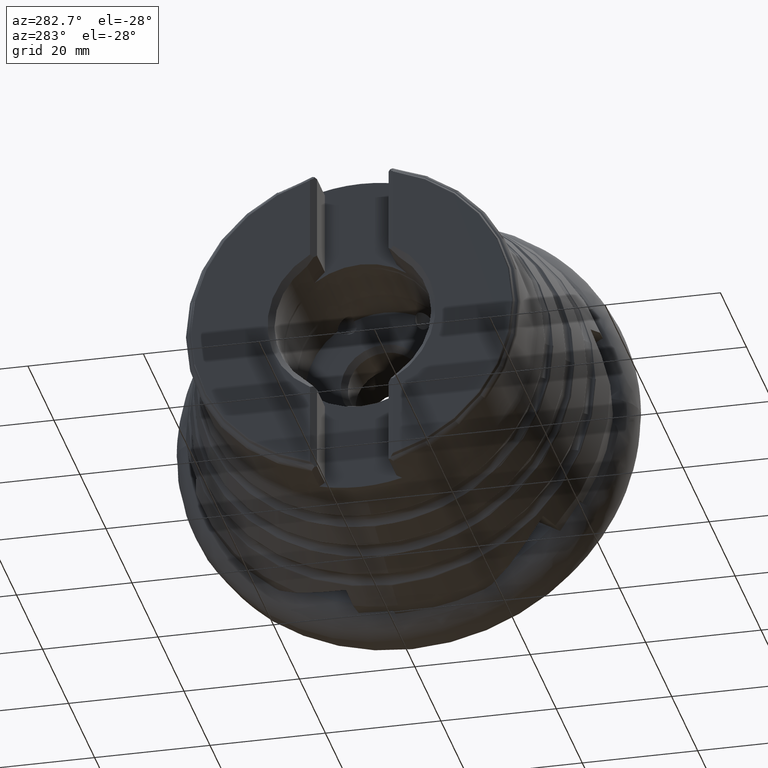
[diagram: clean part render]
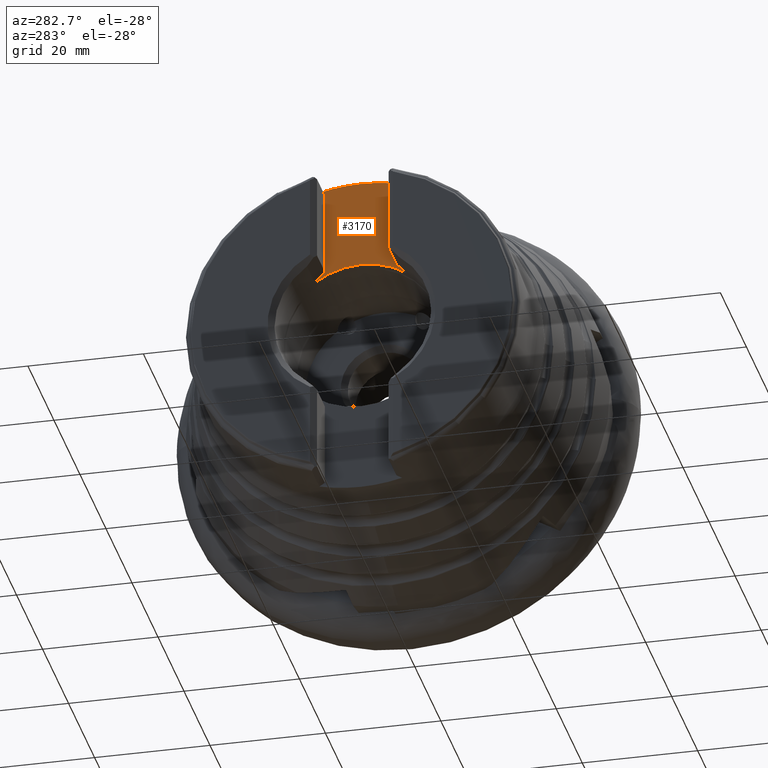
[diagram: same view with one face highlighted and labeled with its STEP entity id]
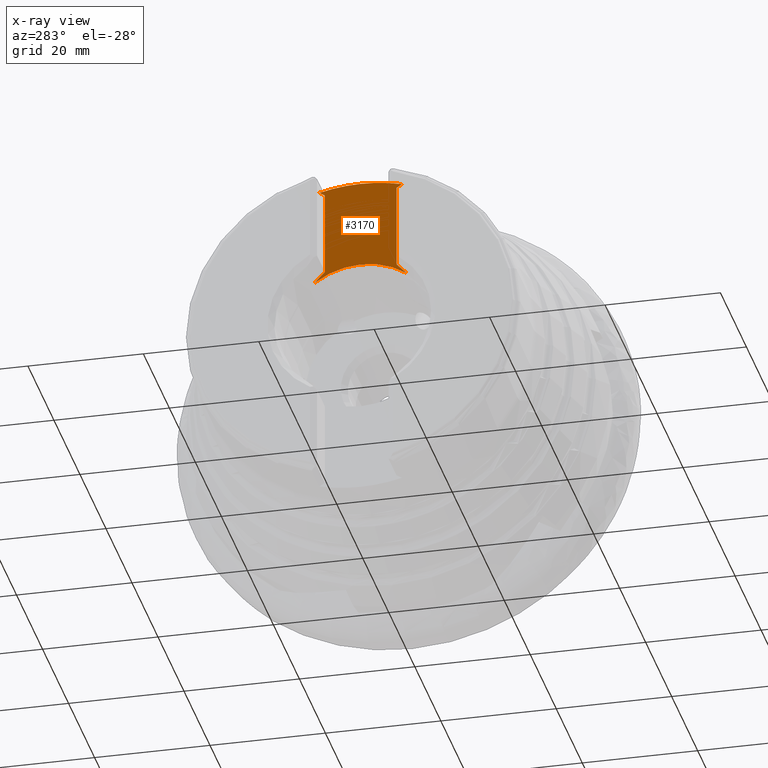
[diagram: x-ray of the same camera — body ghosted, the highlighted face saturated]
A machine part, auxiliary view. The second image highlights one B-rep face of the part: STEP entity #3170.
The next image is the same camera in x-ray: the body ghosted, the highlighted face saturated — about 0% of this face is hidden behind the body in this view.
In plain terms, the highlighted planar face has unit normal (1, 0, 0).
Its self-contained STEP definition (entity closure, byte-faithful):
#68 = DIRECTION ( 'NONE',  ( 0.0000000000000000000, 0.0000000000000000000, -1.000000000000000000 ) ) ;
#147 = CARTESIAN_POINT ( 'NONE',  ( -41.65000000000000600, 1.662458029842531100E-015, 13.57499999999999400 ) ) ;
#158 = ORIENTED_EDGE ( 'NONE', *, *, #5503, .T. ) ;
#294 = DIRECTION ( 'NONE',  ( -1.000000000000000000, -0.0000000000000000000, -0.0000000000000000000 ) ) ;
#318 = EDGE_CURVE ( 'NONE', #9767, #2139, #8883, .T. ) ;
#362 = DIRECTION ( 'NONE',  ( 0.0000000000000000000, 5.329070518200752200E-015, -1.000000000000000000 ) ) ;
#517 = ORIENTED_EDGE ( 'NONE', *, *, #9974, .F. ) ;
#708 = LINE ( 'NONE', #8292, #8998 ) ;
#749 = ORIENTED_EDGE ( 'NONE', *, *, #318, .T. ) ;
#875 = DIRECTION ( 'NONE',  ( -1.000000000000000000, -0.0000000000000000000, -0.0000000000000000000 ) ) ;
#884 = ORIENTED_EDGE ( 'NONE', *, *, #5984, .T. ) ;
#1023 = DIRECTION ( 'NONE',  ( -0.0000000000000000000, 0.6842452857409364600, 0.7292519379071298300 ) ) ;
#1038 = LINE ( 'NONE', #2555, #6414 ) ;
#1084 = EDGE_CURVE ( 'NONE', #3600, #4160, #9006, .T. ) ;
#1086 = VERTEX_POINT ( 'NONE', #9101 ) ;
#1129 = CARTESIAN_POINT ( 'NONE',  ( -41.65000000000000600, -6.200000000000004600, -35.00000000000000000 ) ) ;
#1309 = CARTESIAN_POINT ( 'NONE',  ( -41.65000000000000600, 3.551475717527324000E-015, 28.99999999999999600 ) ) ;
#1348 = EDGE_CURVE ( 'NONE', #3600, #2973, #4599, .T. ) ;
#1619 = AXIS2_PLACEMENT_3D ( 'NONE', #7219, #8034, #9657 ) ;
#1920 = AXIS2_PLACEMENT_3D ( 'NONE', #6296, #875, #68 ) ;
#1924 = VECTOR ( 'NONE', #8045, 1000.000000000000100 ) ;
#2139 = VERTEX_POINT ( 'NONE', #1309 ) ;
#2265 = CARTESIAN_POINT ( 'NONE',  ( -41.65000000000000600, 30.08690900907819100, -12.58730003887090600 ) ) ;
#2273 = VERTEX_POINT ( 'NONE', #2414 ) ;
#2414 = CARTESIAN_POINT ( 'NONE',  ( -41.65000000000000600, 7.157023391835973100, 28.10297166081752000 ) ) ;
#2488 = CIRCLE ( 'NONE', #4611, 13.57499999999999400 ) ;
#2555 = CARTESIAN_POINT ( 'NONE',  ( -41.65000000000000600, -24.28133303195037100, -6.399858751053984400 ) ) ;
#2661 = DIRECTION ( 'NONE',  ( -0.0000000000000000000, -0.0000000000000000000, 1.000000000000000000 ) ) ;
#2816 = ORIENTED_EDGE ( 'NONE', *, *, #8985, .F. ) ;
#2877 = EDGE_CURVE ( 'NONE', #2273, #2973, #708, .T. ) ;
#2973 = VERTEX_POINT ( 'NONE', #6889 ) ;
#3064 = DIRECTION ( 'NONE',  ( 0.0000000000000000000, 1.776356839400250500E-015, -1.000000000000000000 ) ) ;
#3170 = ADVANCED_FACE ( 'NONE', ( #8003 ), #9737, .F. ) ;
#3435 = CIRCLE ( 'NONE', #1619, 13.57499999999999400 ) ;
#3475 = EDGE_LOOP ( 'NONE', ( #749, #158, #8069, #9357, #9939, #517, #2816, #884, #4932, #4401 ) ) ;
#3484 = LINE ( 'NONE', #1129, #7738 ) ;
#3600 = VERTEX_POINT ( 'NONE', #5325 ) ;
#3963 = CARTESIAN_POINT ( 'NONE',  ( -41.65000000000000600, 6.199999999999994800, -35.00000000000000000 ) ) ;
#4040 = EDGE_CURVE ( 'NONE', #1086, #9767, #6686, .T. ) ;
#4160 = VERTEX_POINT ( 'NONE', #8335 ) ;
#4401 = ORIENTED_EDGE ( 'NONE', *, *, #4040, .T. ) ;
#4484 = VECTOR ( 'NONE', #7196, 1000.000000000000100 ) ;
#4525 = DIRECTION ( 'NONE',  ( 0.0000000000000000000, 0.0000000000000000000, -1.000000000000000000 ) ) ;
#4599 = LINE ( 'NONE', #3963, #6563 ) ;
#4611 = AXIS2_PLACEMENT_3D ( 'NONE', #5306, #7745, #3064 ) ;
#4654 = DIRECTION ( 'NONE',  ( -0.0000000000000000000, -0.0000000000000000000, 1.000000000000000000 ) ) ;
#4932 = ORIENTED_EDGE ( 'NONE', *, *, #7229, .T. ) ;
#5033 = CARTESIAN_POINT ( 'NONE',  ( -41.65000000000000600, -7.157023391835956300, 28.10297166081752400 ) ) ;
#5056 = CARTESIAN_POINT ( 'NONE',  ( -41.65000000000000600, -6.200000000000004600, 12.87078501993769400 ) ) ;
#5141 = VERTEX_POINT ( 'NONE', #147 ) ;
#5236 = VERTEX_POINT ( 'NONE', #5056 ) ;
#5306 = CARTESIAN_POINT ( 'NONE',  ( -41.65000000000000600, 0.0000000000000000000, 0.0000000000000000000 ) ) ;
#5325 = CARTESIAN_POINT ( 'NONE',  ( -41.65000000000000600, 6.199999999999994800, 12.87078501993770600 ) ) ;
#5503 = EDGE_CURVE ( 'NONE', #2139, #2273, #7773, .T. ) ;
#5984 = EDGE_CURVE ( 'NONE', #6220, #5236, #1038, .T. ) ;
#6220 = VERTEX_POINT ( 'NONE', #9153 ) ;
#6296 = CARTESIAN_POINT ( 'NONE',  ( -41.65000000000000600, 0.0000000000000000000, 0.0000000000000000000 ) ) ;
#6414 = VECTOR ( 'NONE', #1023, 1000.000000000000000 ) ;
#6563 = VECTOR ( 'NONE', #4654, 1000.000000000000000 ) ;
#6686 = LINE ( 'NONE', #8765, #1924 ) ;
#6773 = AXIS2_PLACEMENT_3D ( 'NONE', #9758, #294, #362 ) ;
#6860 = DIRECTION ( 'NONE',  ( 0.0000000000000000000, -0.8419322925598222700, -0.5395831861214375200 ) ) ;
#6889 = CARTESIAN_POINT ( 'NONE',  ( -41.65000000000000600, 6.199999999999994800, 27.48962812295469100 ) ) ;
#7196 = DIRECTION ( 'NONE',  ( 0.0000000000000000000, 0.6842452857409361300, -0.7292519379071300500 ) ) ;
#7219 = CARTESIAN_POINT ( 'NONE',  ( -41.65000000000000600, 0.0000000000000000000, 0.0000000000000000000 ) ) ;
#7229 = EDGE_CURVE ( 'NONE', #5236, #1086, #3484, .T. ) ;
#7738 = VECTOR ( 'NONE', #2661, 1000.000000000000000 ) ;
#7745 = DIRECTION ( 'NONE',  ( -1.000000000000000000, -0.0000000000000000000, -0.0000000000000000000 ) ) ;
#7773 = CIRCLE ( 'NONE', #1920, 28.99999999999999600 ) ;
#8003 = FACE_OUTER_BOUND ( 'NONE', #3475, .T. ) ;
#8034 = DIRECTION ( 'NONE',  ( -1.000000000000000000, -0.0000000000000000000, -0.0000000000000000000 ) ) ;
#8045 = DIRECTION ( 'NONE',  ( -0.0000000000000000000, -0.8419322925598228300, 0.5395831861214365200 ) ) ;
#8069 = ORIENTED_EDGE ( 'NONE', *, *, #2877, .T. ) ;
#8248 = CARTESIAN_POINT ( 'NONE',  ( -41.65000000000000600, 6.199999999999994800, -35.00000000000000000 ) ) ;
#8292 = CARTESIAN_POINT ( 'NONE',  ( -41.65000000000000600, -22.18856994132711000, 9.295771973549255700 ) ) ;
#8335 = CARTESIAN_POINT ( 'NONE',  ( -41.65000000000000600, 7.956204235286517000, 10.99906537694947600 ) ) ;
#8765 = CARTESIAN_POINT ( 'NONE',  ( -41.65000000000000600, 30.97830975848955500, 3.662544862966687900 ) ) ;
#8883 = CIRCLE ( 'NONE', #6773, 28.99999999999999600 ) ;
#8985 = EDGE_CURVE ( 'NONE', #6220, #5141, #2488, .T. ) ;
#8998 = VECTOR ( 'NONE', #6860, 1000.000000000000000 ) ;
#9006 = LINE ( 'NONE', #2265, #4484 ) ;
#9101 = CARTESIAN_POINT ( 'NONE',  ( -41.65000000000000600, -6.200000000000004600, 27.48962812295471600 ) ) ;
#9153 = CARTESIAN_POINT ( 'NONE',  ( -41.65000000000000600, -7.956204235286507200, 10.99906537694948300 ) ) ;
#9181 = DIRECTION ( 'NONE',  ( 1.000000000000000000, 0.0000000000000000000, 0.0000000000000000000 ) ) ;
#9357 = ORIENTED_EDGE ( 'NONE', *, *, #1348, .F. ) ;
#9517 = AXIS2_PLACEMENT_3D ( 'NONE', #8248, #9181, #4525 ) ;
#9657 = DIRECTION ( 'NONE',  ( 0.0000000000000000000, 0.0000000000000000000, -1.000000000000000000 ) ) ;
#9737 = PLANE ( 'NONE',  #9517 ) ;
#9758 = CARTESIAN_POINT ( 'NONE',  ( -41.65000000000000600, 0.0000000000000000000, 0.0000000000000000000 ) ) ;
#9767 = VERTEX_POINT ( 'NONE', #5033 ) ;
#9939 = ORIENTED_EDGE ( 'NONE', *, *, #1084, .T. ) ;
#9974 = EDGE_CURVE ( 'NONE', #5141, #4160, #3435, .T. ) ;